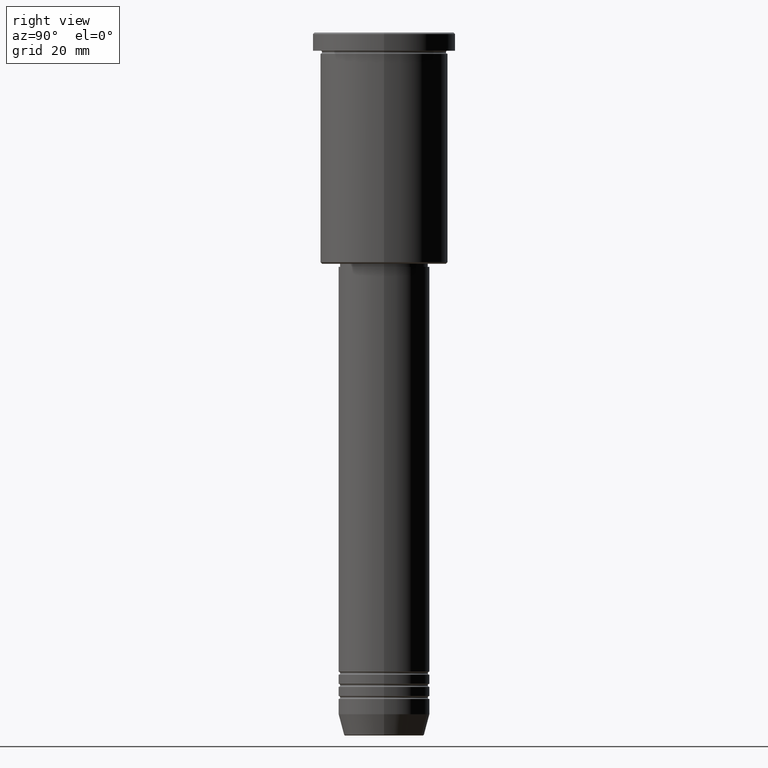
[diagram: clean part render]
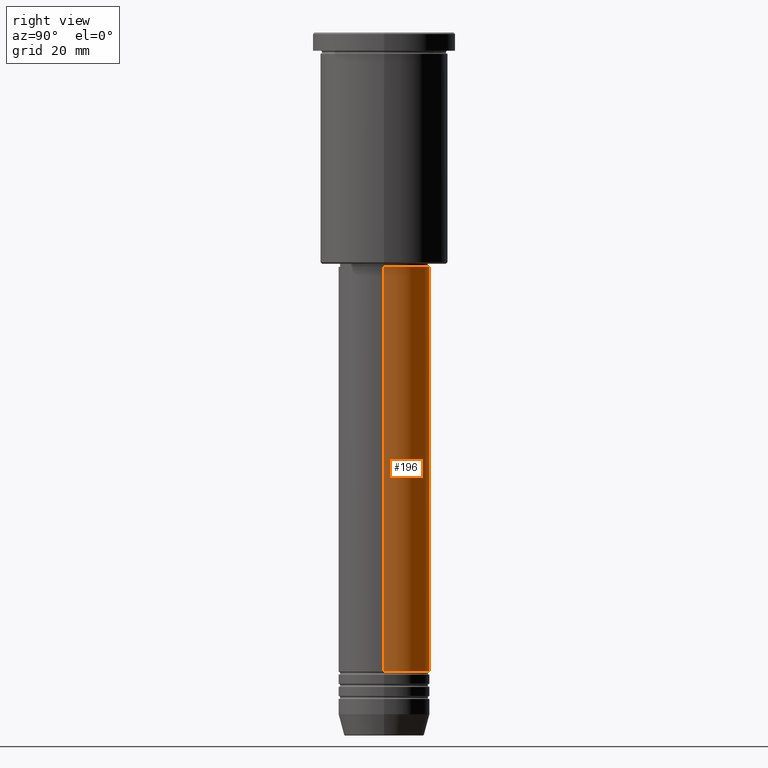
[diagram: same view with one face highlighted and labeled with its STEP entity id]
A machine part, right view. The second image highlights one B-rep face of the part: STEP entity #196.
In plain terms, the highlighted cylindrical surface (partial cylindrical patch) has radius 15 mm, axis along (-0, -0, 1).
Its self-contained STEP definition (entity closure, byte-faithful):
#23 = VECTOR ( 'NONE', #330, 1000.000000000000000 ) ;
#42 = AXIS2_PLACEMENT_3D ( 'NONE', #1051, #514, #785 ) ;
#58 = FACE_OUTER_BOUND ( 'NONE', #261, .T. ) ;
#66 = VERTEX_POINT ( 'NONE', #372 ) ;
#82 = ORIENTED_EDGE ( 'NONE', *, *, #375, .T. ) ;
#136 = CIRCLE ( 'NONE', #992, 15.00000000000000000 ) ;
#156 = EDGE_CURVE ( 'NONE', #176, #66, #487, .T. ) ;
#176 = VERTEX_POINT ( 'NONE', #199 ) ;
#196 = ADVANCED_FACE ( 'NONE', ( #58 ), #1061, .T. ) ;
#199 = CARTESIAN_POINT ( 'NONE',  ( 15.00000000000000000, 0.000000000000000000, -209.9999999999998863 ) ) ;
#213 = DIRECTION ( 'NONE',  ( 1.000000000000000000, 0.000000000000000000, 0.000000000000000000 ) ) ;
#256 = LINE ( 'NONE', #980, #1016 ) ;
#261 = EDGE_LOOP ( 'NONE', ( #892, #82, #912, #662 ) ) ;
#330 = DIRECTION ( 'NONE',  ( -0.000000000000000000, -0.000000000000000000, 1.000000000000000000 ) ) ;
#372 = CARTESIAN_POINT ( 'NONE',  ( -15.00000000000000000, 1.836970198721029589E-15, -209.9999999999998863 ) ) ;
#375 = EDGE_CURVE ( 'NONE', #66, #788, #256, .T. ) ;
#442 = CARTESIAN_POINT ( 'NONE',  ( 0.000000000000000000, 0.000000000000000000, -77.00000000000001421 ) ) ;
#487 = CIRCLE ( 'NONE', #1055, 15.00000000000000000 ) ;
#497 = VERTEX_POINT ( 'NONE', #661 ) ;
#514 = DIRECTION ( 'NONE',  ( -0.000000000000000000, -0.000000000000000000, 1.000000000000000000 ) ) ;
#584 = EDGE_CURVE ( 'NONE', #176, #497, #1145, .T. ) ;
#661 = CARTESIAN_POINT ( 'NONE',  ( 15.00000000000000000, 0.000000000000000000, -77.00000000000001421 ) ) ;
#662 = ORIENTED_EDGE ( 'NONE', *, *, #584, .F. ) ;
#677 = DIRECTION ( 'NONE',  ( -0.000000000000000000, -0.000000000000000000, 1.000000000000000000 ) ) ;
#750 = EDGE_CURVE ( 'NONE', #497, #788, #136, .T. ) ;
#785 = DIRECTION ( 'NONE',  ( 1.000000000000000000, 0.000000000000000000, 0.000000000000000000 ) ) ;
#788 = VERTEX_POINT ( 'NONE', #1176 ) ;
#807 = DIRECTION ( 'NONE',  ( 1.000000000000000000, 0.000000000000000000, 0.000000000000000000 ) ) ;
#892 = ORIENTED_EDGE ( 'NONE', *, *, #156, .T. ) ;
#912 = ORIENTED_EDGE ( 'NONE', *, *, #750, .F. ) ;
#980 = CARTESIAN_POINT ( 'NONE',  ( -15.00000000000000000, 1.836970198721029589E-15, 0.000000000000000000 ) ) ;
#987 = DIRECTION ( 'NONE',  ( -0.000000000000000000, -0.000000000000000000, 1.000000000000000000 ) ) ;
#992 = AXIS2_PLACEMENT_3D ( 'NONE', #442, #987, #807 ) ;
#1016 = VECTOR ( 'NONE', #1093, 1000.000000000000000 ) ;
#1051 = CARTESIAN_POINT ( 'NONE',  ( 0.000000000000000000, 0.000000000000000000, 0.000000000000000000 ) ) ;
#1055 = AXIS2_PLACEMENT_3D ( 'NONE', #1131, #677, #213 ) ;
#1061 = CYLINDRICAL_SURFACE ( 'NONE', #42, 15.00000000000000000 ) ;
#1093 = DIRECTION ( 'NONE',  ( -0.000000000000000000, -0.000000000000000000, 1.000000000000000000 ) ) ;
#1131 = CARTESIAN_POINT ( 'NONE',  ( 0.000000000000000000, 0.000000000000000000, -209.9999999999998863 ) ) ;
#1145 = LINE ( 'NONE', #1153, #23 ) ;
#1153 = CARTESIAN_POINT ( 'NONE',  ( 15.00000000000000000, 0.000000000000000000, 0.000000000000000000 ) ) ;
#1176 = CARTESIAN_POINT ( 'NONE',  ( -15.00000000000000000, 1.836970198721029589E-15, -77.00000000000001421 ) ) ;